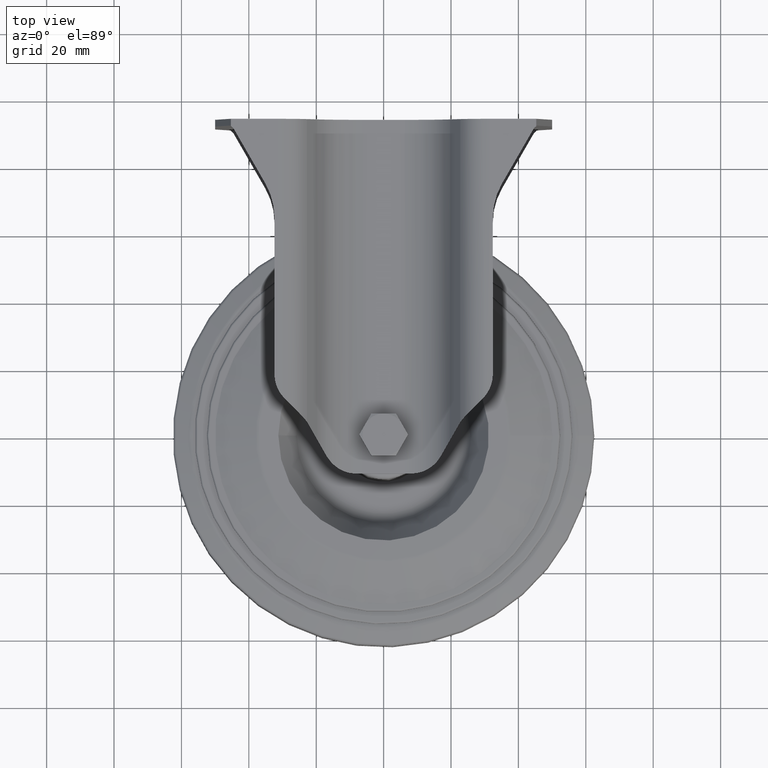
[diagram: clean part render]
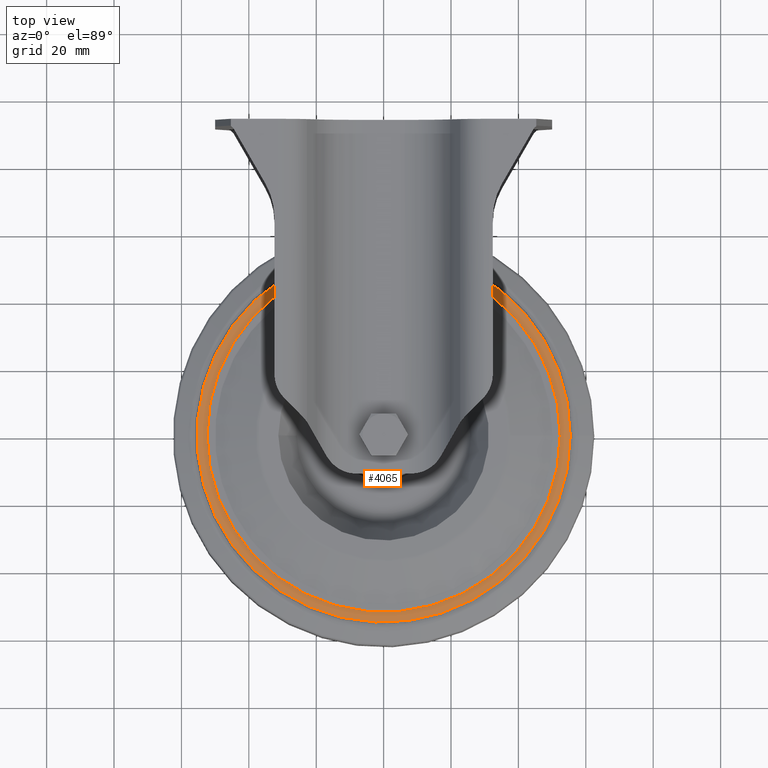
[diagram: same view with one face highlighted and labeled with its STEP entity id]
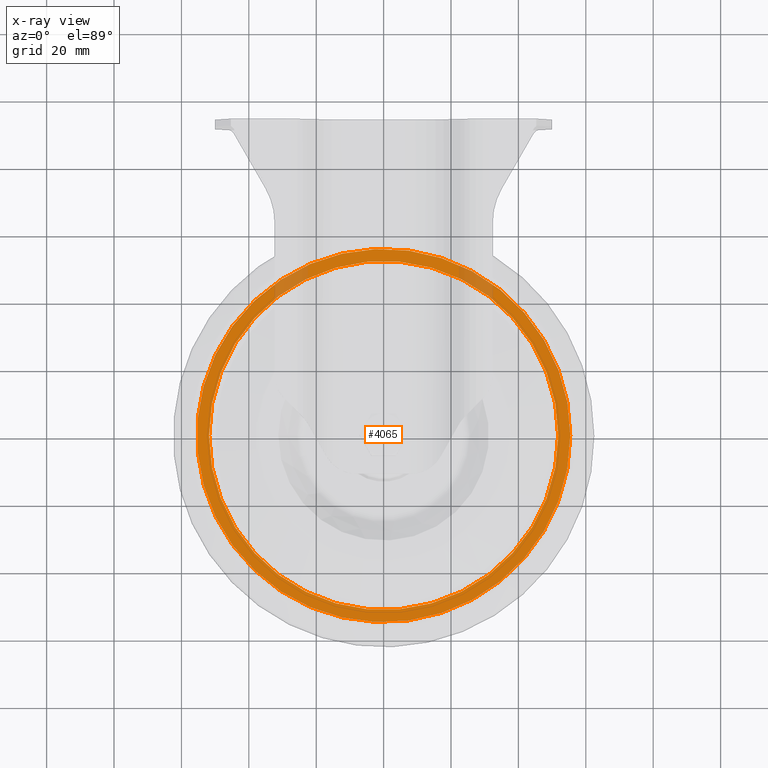
[diagram: x-ray of the same camera — body ghosted, the highlighted face saturated]
A machine part, top view. The second image highlights one B-rep face of the part: STEP entity #4065.
The next image is the same camera in x-ray: the body ghosted, the highlighted face saturated — about 7% of this face is hidden behind the body in this view.
In plain terms, the highlighted planar face has unit normal (0, 0, 1).
Its self-contained STEP definition (entity closure, byte-faithful):
#191=FACE_BOUND('',#1384,.T.);
#292=PLANE('',#4604);
#1119=FACE_OUTER_BOUND('',#1383,.T.);
#1383=EDGE_LOOP('',(#3684));
#1384=EDGE_LOOP('',(#3685));
#1583=CIRCLE('',#4603,55.3727901237003);
#1584=CIRCLE('',#4605,51.7909300412334);
#2017=VERTEX_POINT('',#7334);
#2018=VERTEX_POINT('',#7338);
#2578=EDGE_CURVE('',#2017,#2017,#1583,.T.);
#2579=EDGE_CURVE('',#2018,#2018,#1584,.T.);
#3684=ORIENTED_EDGE('',*,*,#2578,.F.);
#3685=ORIENTED_EDGE('',*,*,#2579,.T.);
#4065=ADVANCED_FACE('',(#1119,#191),#292,.T.);
#4603=AXIS2_PLACEMENT_3D('',#7336,#5739,#5740);
#4604=AXIS2_PLACEMENT_3D('',#7337,#5741,#5742);
#4605=AXIS2_PLACEMENT_3D('',#7339,#5743,#5744);
#5739=DIRECTION('center_axis',(-3.47869486588621E-17,0.,-1.));
#5740=DIRECTION('ref_axis',(-1.,0.,3.47869486588621E-17));
#5741=DIRECTION('center_axis',(3.47869486588621E-17,0.,1.));
#5742=DIRECTION('ref_axis',(1.,0.,-3.47869486588621E-17));
#5743=DIRECTION('center_axis',(-3.47869486588621E-17,0.,-1.));
#5744=DIRECTION('ref_axis',(-1.,0.,3.47869486588621E-17));
#7334=CARTESIAN_POINT('',(55.3727901237003,-6.78121101848478E-15,12.9625715005459));
#7336=CARTESIAN_POINT('Origin',(4.50928309276318E-16,0.,12.9625715005459));
#7337=CARTESIAN_POINT('Origin',(-55.3727901237003,0.,12.9625715005459));
#7338=CARTESIAN_POINT('',(51.7909300412334,-6.3425596699861E-15,12.9625715005459));
#7339=CARTESIAN_POINT('Origin',(4.50928309276318E-16,0.,12.9625715005459));